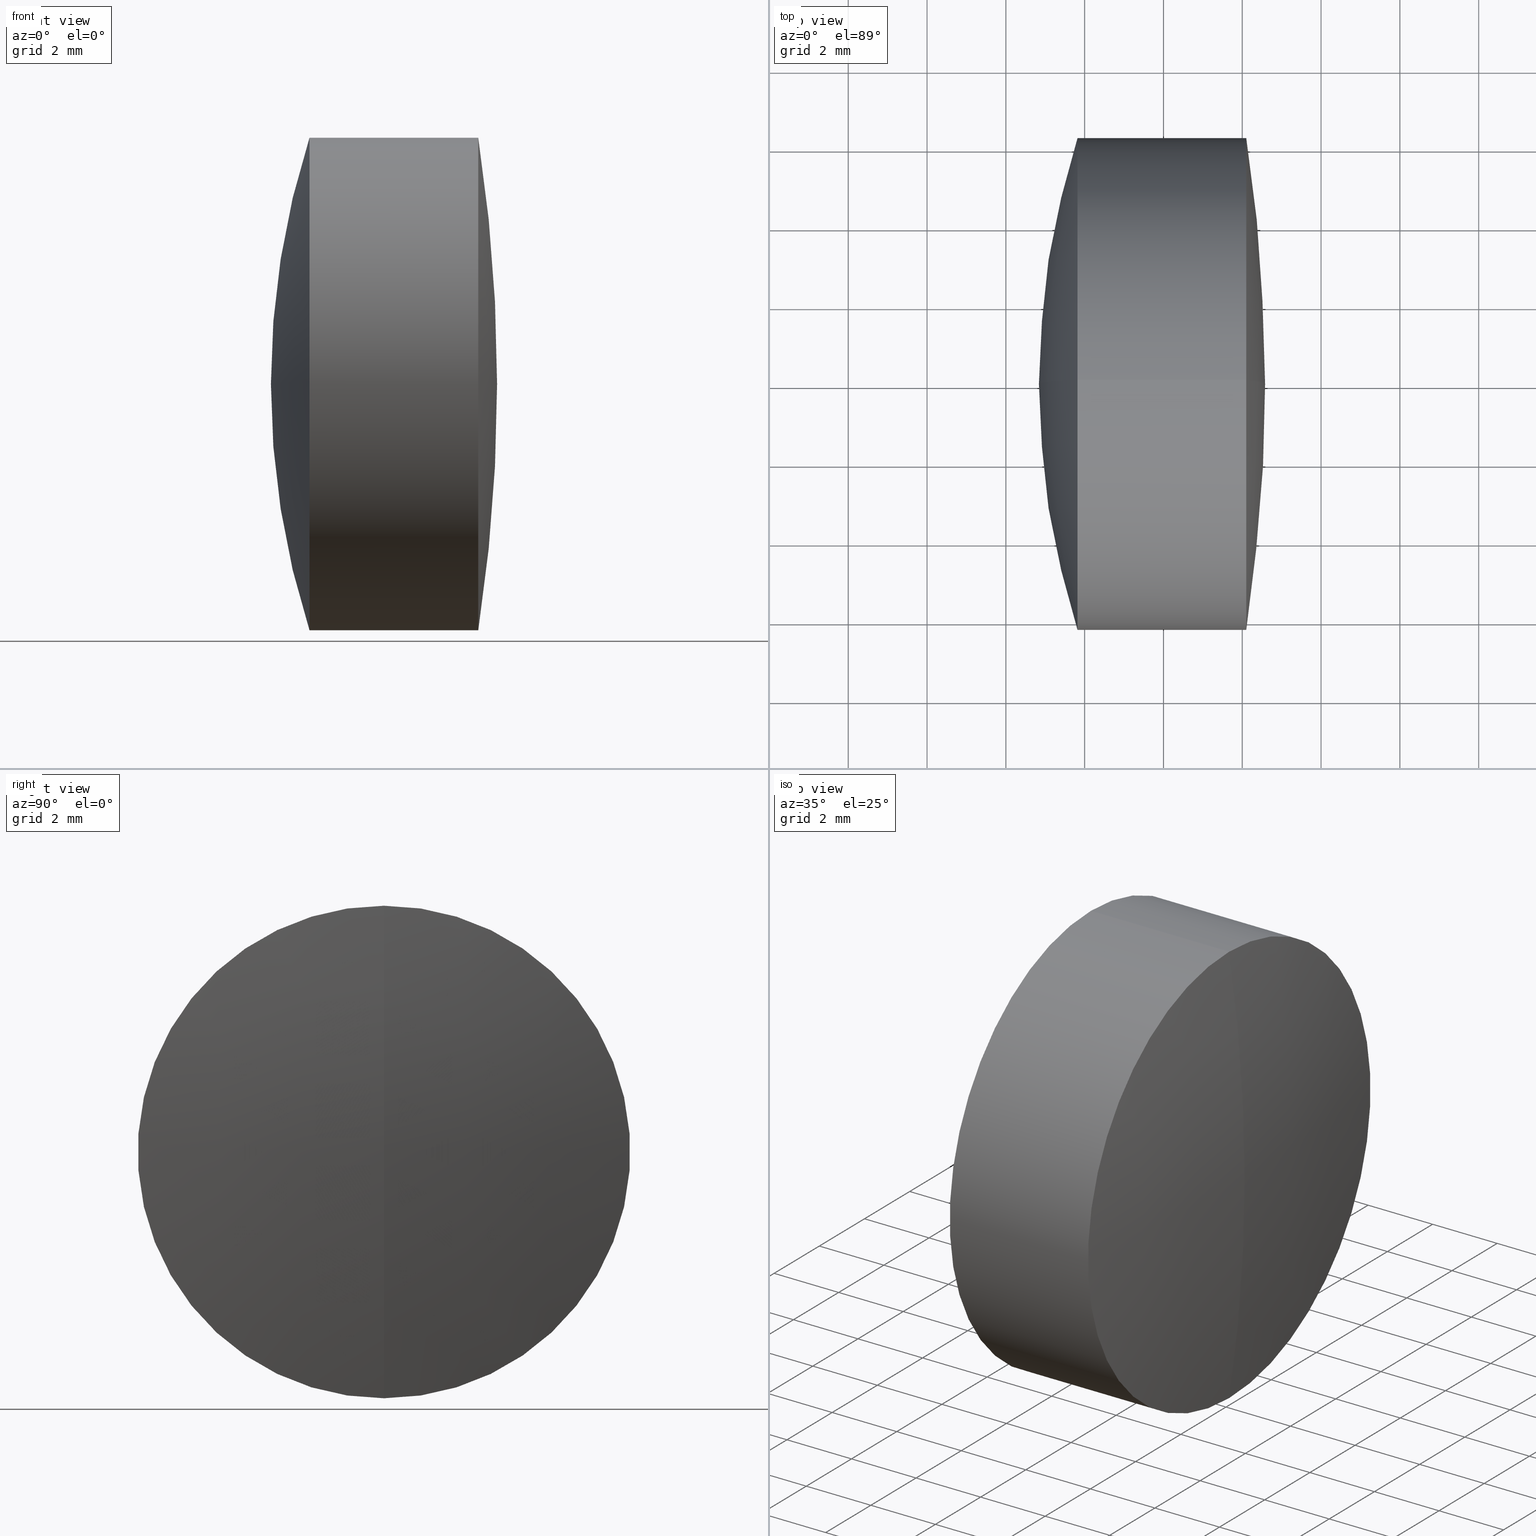
[diagram: canonical four-view strip — front | top / right | iso, engineering-drawing reading convention]
A machine part, canonical four-view strip (front | top / right | iso — engineering-drawing reading convention). The complete STEP part file that produces these views, byte-faithful:
ISO-10303-21;
HEADER;
FILE_DESCRIPTION (( 'STEP AP214' ),
    '1' );
FILE_NAME ('145023.STEP',
    '2019-05-16T06:52:18',
    ( 'user' ),
    ( '΢���й�' ),
    'SwSTEP 2.0',
    'SolidWorks 2016',
    '' );
FILE_SCHEMA (( 'AUTOMOTIVE_DESIGN' ));
ENDSEC;

DATA;
#1 = CARTESIAN_POINT ( 'NONE',  ( -1.161079219261292000, 0.0000000000000000000, 4.320415974280943700E-016 ) ) ;
#2 = ORIENTED_EDGE ( 'NONE', *, *, #272, .F. ) ;
#3 = FILL_AREA_STYLE_COLOUR ( '', #194 ) ;
#4 = VERTEX_POINT ( 'NONE', #335 ) ;
#5 = CARTESIAN_POINT ( 'NONE',  ( 19.27892078073870900, 0.0000000000000000000, -8.195474313005006500E-016 ) ) ;
#6 = DIRECTION ( 'NONE',  ( -1.000000000000000000, -0.0000000000000000000, -0.0000000000000000000 ) ) ;
#7 = COLOUR_RGB ( '',1.000000000000000000, 1.000000000000000000, 1.000000000000000000 ) ;
#8 = ORIENTED_EDGE ( 'NONE', *, *, #193, .F. ) ;
#9 = PRODUCT_RELATED_PRODUCT_CATEGORY ( 'part', '', ( #321 ) ) ;
#10 =( NAMED_UNIT ( * ) PLANE_ANGLE_UNIT ( ) SI_UNIT ( $, .RADIAN. ) );
#11 = EDGE_CURVE ( 'NONE', #136, #128, #120, .T. ) ;
#12 = AXIS2_PLACEMENT_3D ( 'NONE', #237, #157, #56 ) ;
#13 = SPHERICAL_SURFACE ( 'NONE', #317, 14.49600000000000200 ) ;
#14 = SPHERICAL_SURFACE ( 'NONE', #90, 41.14000000000000100 ) ;
#15 = CLOSED_SHELL ( 'NONE', ( #329, #19, #282, #336, #125, #102 ) ) ;
#16 = EDGE_LOOP ( 'NONE', ( #18, #198, #164, #332 ) ) ;
#17 = CIRCLE ( 'NONE', #180, 6.249999999999999100 ) ;
#18 = ORIENTED_EDGE ( 'NONE', *, *, #272, .T. ) ;
#19 = ADVANCED_FACE ( 'NONE', ( #31 ), #60, .T. ) ;
#20 = CARTESIAN_POINT ( 'NONE',  ( 1.272351808119067900, 7.654042494670955600E-016, -6.250000000000000000 ) ) ;
#21 = FACE_OUTER_BOUND ( 'NONE', #16, .T. ) ;
#22 = DIRECTION ( 'NONE',  ( 0.0000000000000000000, 0.0000000000000000000, 1.000000000000000000 ) ) ;
#23 = DIRECTION ( 'NONE',  ( 0.0000000000000000000, -1.224646799147353200E-016, 1.000000000000000000 ) ) ;
#24 = PRODUCT_DEFINITION_SHAPE ( 'NONE', 'NONE',  #274 ) ;
#25 = CARTESIAN_POINT ( 'NONE',  ( -11.80707921926129200, 0.0000000000000000000, -8.469364311325082000E-016 ) ) ;
#26 = CARTESIAN_POINT ( 'NONE',  ( -0.1820940951612623800, 0.0000000000000000000, 6.250000000000002700 ) ) ;
#27 = CARTESIAN_POINT ( 'NONE',  ( 19.27892078073870900, 0.0000000000000000000, -8.195474313005006500E-016 ) ) ;
#28 = ORIENTED_EDGE ( 'NONE', *, *, #139, .T. ) ;
#29 = AXIS2_PLACEMENT_3D ( 'NONE', #25, #152, #23 ) ;
#30 = EDGE_CURVE ( 'NONE', #344, #227, #184, .T. ) ;
#31 = FACE_OUTER_BOUND ( 'NONE', #117, .T. ) ;
#32 = CARTESIAN_POINT ( 'NONE',  ( -0.1820940951612623800, 7.654042494670960600E-016, -6.250000000000003600 ) ) ;
#33 = DIRECTION ( 'NONE',  ( 0.0000000000000000000, 0.0000000000000000000, 1.000000000000000000 ) ) ;
#34 = AXIS2_PLACEMENT_3D ( 'NONE', #123, #192, #269 ) ;
#35 = DIRECTION ( 'NONE',  ( 0.0000000000000000000, 0.0000000000000000000, 1.000000000000000000 ) ) ;
#36 = ADVANCED_FACE ( 'NONE', ( #108 ), #331, .T. ) ;
#37 = DIRECTION ( 'NONE',  ( 0.0000000000000000000, 0.0000000000000000000, 1.000000000000000000 ) ) ;
#38 = CARTESIAN_POINT ( 'NONE',  ( -36.56107921926129500, 0.0000000000000000000, 0.0000000000000000000 ) ) ;
#39 = CIRCLE ( 'NONE', #169, 6.250000000000000900 ) ;
#40 = ORIENTED_EDGE ( 'NONE', *, *, #191, .T. ) ;
#41 = ORIENTED_EDGE ( 'NONE', *, *, #223, .F. ) ;
#42 = AXIS2_PLACEMENT_3D ( 'NONE', #290, #135, #214 ) ;
#43 = ORIENTED_EDGE ( 'NONE', *, *, #279, .F. ) ;
#44 = EDGE_CURVE ( 'NONE', #227, #338, #199, .T. ) ;
#45 = EDGE_CURVE ( 'NONE', #338, #248, #55, .T. ) ;
#46 = DIRECTION ( 'NONE',  ( -1.000000000000000000, -0.0000000000000000000, -0.0000000000000000000 ) ) ;
#47 = DIRECTION ( 'NONE',  ( 0.0000000000000000000, 0.0000000000000000000, -1.000000000000000000 ) ) ;
#48 =( NAMED_UNIT ( * ) SI_UNIT ( $, .STERADIAN. ) SOLID_ANGLE_UNIT ( ) );
#49 = CARTESIAN_POINT ( 'NONE',  ( -0.5519199926577972300, 0.0000000000000000000, 0.0000000000000000000 ) ) ;
#50 = DIRECTION ( 'NONE',  ( 0.0000000000000000000, 0.0000000000000000000, 1.000000000000000000 ) ) ;
#51 = CIRCLE ( 'NONE', #340, 6.250000000000000900 ) ;
#52 = CARTESIAN_POINT ( 'NONE',  ( -0.1820940951612632400, 0.0000000000000000000, 0.0000000000000000000 ) ) ;
#53 = SHAPE_DEFINITION_REPRESENTATION ( #24, #86 ) ;
#54 = ORIENTED_EDGE ( 'NONE', *, *, #261, .F. ) ;
#55 = CIRCLE ( 'NONE', #254, 20.44000000000000100 ) ;
#56 = DIRECTION ( 'NONE',  ( 0.0000000000000000000, -1.224646799147353200E-016, 1.000000000000000000 ) ) ;
#57 = ORIENTED_EDGE ( 'NONE', *, *, #223, .T. ) ;
#58 = DIRECTION ( 'NONE',  ( -0.0000000000000000000, 1.000000000000000000, 1.224646799147353200E-016 ) ) ;
#59 = FACE_OUTER_BOUND ( 'NONE', #175, .T. ) ;
#60 = CYLINDRICAL_SURFACE ( 'NONE', #129, 6.249999999999999100 ) ;
#61 = ORIENTED_EDGE ( 'NONE', *, *, #44, .F. ) ;
#62 = AXIS2_PLACEMENT_3D ( 'NONE', #76, #6, #35 ) ;
#63 = AXIS2_PLACEMENT_3D ( 'NONE', #143, #58, #258 ) ;
#64 = ORIENTED_EDGE ( 'NONE', *, *, #147, .T. ) ;
#65 = ORIENTED_EDGE ( 'NONE', *, *, #45, .F. ) ;
#66 = AXIS2_PLACEMENT_3D ( 'NONE', #298, #154, #312 ) ;
#67 = CARTESIAN_POINT ( 'NONE',  ( -36.56107921926129500, 0.0000000000000000000, 0.0000000000000000000 ) ) ;
#68 = ORIENTED_EDGE ( 'NONE', *, *, #200, .T. ) ;
#69 = DIRECTION ( 'NONE',  ( -1.000000000000000000, -0.0000000000000000000, -0.0000000000000000000 ) ) ;
#70 = SURFACE_SIDE_STYLE ('',( #162 ) ) ;
#71 = PRESENTATION_LAYER_ASSIGNMENT (  '', '', ( #188 ) ) ;
#72 = CARTESIAN_POINT ( 'NONE',  ( 19.27892078073870900, 0.0000000000000000000, -8.195474313005006500E-016 ) ) ;
#73 = VERTEX_POINT ( 'NONE', #204 ) ;
#74 = DIRECTION ( 'NONE',  ( 0.0000000000000000000, 0.0000000000000000000, 1.000000000000000000 ) ) ;
#75 = DIRECTION ( 'NONE',  ( 0.0000000000000000000, 0.0000000000000000000, 1.000000000000000000 ) ) ;
#76 = CARTESIAN_POINT ( 'NONE',  ( -0.5519199926577972300, 0.0000000000000000000, 0.0000000000000000000 ) ) ;
#77 = SURFACE_STYLE_FILL_AREA ( #255 ) ;
#78 = ORIENTED_EDGE ( 'NONE', *, *, #139, .F. ) ;
#79 = EDGE_LOOP ( 'NONE', ( #251, #28, #218, #299 ) ) ;
#80 = DIRECTION ( 'NONE',  ( 0.0000000000000000000, 0.0000000000000000000, 1.000000000000000000 ) ) ;
#81 = CARTESIAN_POINT ( 'NONE',  ( -0.5519199926577972300, 0.0000000000000000000, 6.250000000000000000 ) ) ;
#82 = CARTESIAN_POINT ( 'NONE',  ( -11.80707921926129200, 0.0000000000000000000, -8.469364311325082000E-016 ) ) ;
#83 = VECTOR ( 'NONE', #300, 1000.000000000000000 ) ;
#84 = DIRECTION ( 'NONE',  ( 0.0000000000000000000, -1.000000000000000000, 0.0000000000000000000 ) ) ;
#85 = AXIS2_PLACEMENT_3D ( 'NONE', #5, #291, #98 ) ;
#86 = ADVANCED_BREP_SHAPE_REPRESENTATION ( '145023', ( #278, #311, #66 ), #150 ) ;
#87 = ORIENTED_EDGE ( 'NONE', *, *, #30, .T. ) ;
#88 = FACE_OUTER_BOUND ( 'NONE', #310, .T. ) ;
#89 = ORIENTED_EDGE ( 'NONE', *, *, #44, .T. ) ;
#90 = AXIS2_PLACEMENT_3D ( 'NONE', #38, #244, #37 ) ;
#91 = FACE_OUTER_BOUND ( 'NONE', #325, .T. ) ;
#92 = DIRECTION ( 'NONE',  ( -1.000000000000000000, -0.0000000000000000000, -0.0000000000000000000 ) ) ;
#93 = ORIENTED_EDGE ( 'NONE', *, *, #326, .T. ) ;
#94 = CARTESIAN_POINT ( 'NONE',  ( 2.688920780738710500, 0.0000000000000000000, 4.068756888949350500E-017 ) ) ;
#95 = CARTESIAN_POINT ( 'NONE',  ( -9.702612178336682500, 0.0000000000000000000, 0.0000000000000000000 ) ) ;
#96 = DIRECTION ( 'NONE',  ( 0.0000000000000000000, 0.0000000000000000000, 1.000000000000000000 ) ) ;
#97 = ADVANCED_FACE ( 'NONE', ( #21 ), #107, .T. ) ;
#98 = DIRECTION ( 'NONE',  ( 0.0000000000000000000, 0.0000000000000000000, 1.000000000000000000 ) ) ;
#99 = APPLICATION_PROTOCOL_DEFINITION ( 'draft international standard', 'automotive_design', 1998, #233 ) ;
#100 = PRESENTATION_STYLE_ASSIGNMENT (( #347 ) ) ;
#101 = DIRECTION ( 'NONE',  ( 0.0000000000000000000, 1.000000000000000000, 0.0000000000000000000 ) ) ;
#102 = ADVANCED_FACE ( 'NONE', ( #250 ), #264, .T. ) ;
#103 = DIRECTION ( 'NONE',  ( -1.000000000000000000, -0.0000000000000000000, -0.0000000000000000000 ) ) ;
#104 = DIRECTION ( 'NONE',  ( 0.0000000000000000000, 0.0000000000000000000, 1.000000000000000000 ) ) ;
#105 = FACE_OUTER_BOUND ( 'NONE', #195, .T. ) ;
#106 = COLOUR_RGB ( '',1.000000000000000000, 1.000000000000000000, 1.000000000000000000 ) ;
#107 = CYLINDRICAL_SURFACE ( 'NONE', #171, 6.250000000000000000 ) ;
#108 = FACE_OUTER_BOUND ( 'NONE', #79, .T. ) ;
#109 = DIRECTION ( 'NONE',  ( 0.0000000000000000000, 0.0000000000000000000, -1.000000000000000000 ) ) ;
#110 = CARTESIAN_POINT ( 'NONE',  ( -11.80707921926129200, 0.0000000000000000000, -8.469364311325082000E-016 ) ) ;
#111 = CARTESIAN_POINT ( 'NONE',  ( -11.80707921926129200, 0.0000000000000000000, -8.469364311325082000E-016 ) ) ;
#112 = UNCERTAINTY_MEASURE_WITH_UNIT (LENGTH_MEASURE( 1.000000000000000100E-005 ), #156, 'distance_accuracy_value', 'NONE');
#113 = EDGE_CURVE ( 'NONE', #333, #128, #309, .T. ) ;
#114 = VERTEX_POINT ( 'NONE', #206 ) ;
#115 = VERTEX_POINT ( 'NONE', #159 ) ;
#116 = STYLED_ITEM ( 'NONE', ( #100 ), #278 ) ;
#117 = EDGE_LOOP ( 'NONE', ( #68, #141, #61, #288 ) ) ;
#118 = SPHERICAL_SURFACE ( 'NONE', #322, 20.44000000000000100 ) ;
#119 = ORIENTED_EDGE ( 'NONE', *, *, #200, .F. ) ;
#120 = CIRCLE ( 'NONE', #63, 14.49600000000000200 ) ;
#121 = UNCERTAINTY_MEASURE_WITH_UNIT (LENGTH_MEASURE( 1.000000000000000100E-005 ), #137, 'distance_accuracy_value', 'NONE');
#122 = DIRECTION ( 'NONE',  ( 0.0000000000000000000, -1.224646799147353000E-016, 1.000000000000000000 ) ) ;
#123 = CARTESIAN_POINT ( 'NONE',  ( -11.80707921926129200, 0.0000000000000000000, -8.469364311325082000E-016 ) ) ;
#124 = DIRECTION ( 'NONE',  ( -1.000000000000000000, -0.0000000000000000000, -0.0000000000000000000 ) ) ;
#125 = ADVANCED_FACE ( 'NONE', ( #240 ), #273, .T. ) ;
#126 = DIRECTION ( 'NONE',  ( 0.0000000000000000000, 0.0000000000000000000, 1.000000000000000000 ) ) ;
#127 = PRESENTATION_LAYER_ASSIGNMENT (  '', '', ( #319 ) ) ;
#128 = VERTEX_POINT ( 'NONE', #20 ) ;
#129 = AXIS2_PLACEMENT_3D ( 'NONE', #95, #124, #216 ) ;
#130 = AXIS2_PLACEMENT_3D ( 'NONE', #230, #92, #287 ) ;
#131 = ORIENTED_EDGE ( 'NONE', *, *, #261, .T. ) ;
#132 = CIRCLE ( 'NONE', #130, 6.249999999999999100 ) ;
#133 = CARTESIAN_POINT ( 'NONE',  ( 19.27892078073870900, 0.0000000000000000000, -8.195474313005006500E-016 ) ) ;
#134 =( GEOMETRIC_REPRESENTATION_CONTEXT ( 3 ) GLOBAL_UNCERTAINTY_ASSIGNED_CONTEXT ( ( #112 ) ) GLOBAL_UNIT_ASSIGNED_CONTEXT ( ( #156, #10, #302 ) ) REPRESENTATION_CONTEXT ( 'NONE', 'WORKASPACE' ) );
#135 = DIRECTION ( 'NONE',  ( 0.0000000000000000000, -1.000000000000000000, 0.0000000000000000000 ) ) ;
#136 = VERTEX_POINT ( 'NONE', #94 ) ;
#137 =( LENGTH_UNIT ( ) NAMED_UNIT ( * ) SI_UNIT ( .MILLI., .METRE. ) );
#138 = CIRCLE ( 'NONE', #166, 14.49600000000000200 ) ;
#139 = EDGE_CURVE ( 'NONE', #333, #314, #39, .T. ) ;
#140 = ORIENTED_EDGE ( 'NONE', *, *, #170, .T. ) ;
#141 = ORIENTED_EDGE ( 'NONE', *, *, #279, .T. ) ;
#142 = FACE_OUTER_BOUND ( 'NONE', #228, .T. ) ;
#143 = CARTESIAN_POINT ( 'NONE',  ( -11.80707921926129200, 0.0000000000000000000, -8.469364311325082000E-016 ) ) ;
#144 = DIRECTION ( 'NONE',  ( -1.000000000000000000, -0.0000000000000000000, -0.0000000000000000000 ) ) ;
#145 = AXIS2_PLACEMENT_3D ( 'NONE', #271, #242, #75 ) ;
#146 = CIRCLE ( 'NONE', #29, 14.49600000000000200 ) ;
#147 = EDGE_CURVE ( 'NONE', #136, #115, #283, .T. ) ;
#148 = ORIENTED_EDGE ( 'NONE', *, *, #45, .T. ) ;
#149 = CARTESIAN_POINT ( 'NONE',  ( 1.272351808119067900, 0.0000000000000000000, 0.0000000000000000000 ) ) ;
#150 =( GEOMETRIC_REPRESENTATION_CONTEXT ( 3 ) GLOBAL_UNCERTAINTY_ASSIGNED_CONTEXT ( ( #121 ) ) GLOBAL_UNIT_ASSIGNED_CONTEXT ( ( #137, #270, #48 ) ) REPRESENTATION_CONTEXT ( 'NONE', 'WORKASPACE' ) );
#151 = CARTESIAN_POINT ( 'NONE',  ( 1.272351808119067900, 0.0000000000000000000, 6.249999999999999100 ) ) ;
#152 = DIRECTION ( 'NONE',  ( -0.0000000000000000000, 1.000000000000000000, 1.224646799147353200E-016 ) ) ;
#153 =( LENGTH_UNIT ( ) NAMED_UNIT ( * ) SI_UNIT ( .MILLI., .METRE. ) );
#154 = DIRECTION ( 'NONE',  ( 0.0000000000000000000, 0.0000000000000000000, 1.000000000000000000 ) ) ;
#155 = CARTESIAN_POINT ( 'NONE',  ( 4.101398570465201800, 0.0000000000000000000, 0.0000000000000000000 ) ) ;
#156 =( LENGTH_UNIT ( ) NAMED_UNIT ( * ) SI_UNIT ( .MILLI., .METRE. ) );
#157 = DIRECTION ( 'NONE',  ( -0.0000000000000000000, 1.000000000000000000, 1.224646799147353200E-016 ) ) ;
#158 = FACE_OUTER_BOUND ( 'NONE', #293, .T. ) ;
#159 = CARTESIAN_POINT ( 'NONE',  ( 1.272351808119067900, 0.0000000000000000000, 6.249999999999999100 ) ) ;
#160 = SURFACE_STYLE_USAGE ( .BOTH. , #210 ) ;
#161 = FILL_AREA_STYLE ('',( #346 ) ) ;
#162 = SURFACE_STYLE_FILL_AREA ( #231 ) ;
#163 = PRESENTATION_STYLE_ASSIGNMENT (( #179 ) ) ;
#164 = ORIENTED_EDGE ( 'NONE', *, *, #170, .F. ) ;
#165 = MECHANICAL_DESIGN_GEOMETRIC_PRESENTATION_REPRESENTATION (  '', ( #116 ), #226 ) ;
#166 = AXIS2_PLACEMENT_3D ( 'NONE', #82, #301, #303 ) ;
#167 = SPHERICAL_SURFACE ( 'NONE', #85, 20.44000000000000100 ) ;
#168 = SPHERICAL_SURFACE ( 'NONE', #334, 41.14000000000000100 ) ;
#169 = AXIS2_PLACEMENT_3D ( 'NONE', #178, #181, #126 ) ;
#170 = EDGE_CURVE ( 'NONE', #115, #128, #185, .T. ) ;
#171 = AXIS2_PLACEMENT_3D ( 'NONE', #49, #187, #80 ) ;
#172 = ADVANCED_FACE ( 'NONE', ( #158 ), #168, .T. ) ;
#173 = LINE ( 'NONE', #81, #342 ) ;
#174 = ORIENTED_EDGE ( 'NONE', *, *, #203, .T. ) ;
#175 = EDGE_LOOP ( 'NONE', ( #65, #196, #174 ) ) ;
#176 = ORIENTED_EDGE ( 'NONE', *, *, #337, .T. ) ;
#177 =( NAMED_UNIT ( * ) PLANE_ANGLE_UNIT ( ) SI_UNIT ( $, .RADIAN. ) );
#178 = CARTESIAN_POINT ( 'NONE',  ( 4.101398570465201800, 0.0000000000000000000, 0.0000000000000000000 ) ) ;
#179 = SURFACE_STYLE_USAGE ( .BOTH. , #70 ) ;
#180 = AXIS2_PLACEMENT_3D ( 'NONE', #315, #316, #22 ) ;
#181 = DIRECTION ( 'NONE',  ( -1.000000000000000000, -0.0000000000000000000, -0.0000000000000000000 ) ) ;
#182 = DIRECTION ( 'NONE',  ( 0.0000000000000000000, 1.000000000000000000, 0.0000000000000000000 ) ) ;
#183 = EDGE_LOOP ( 'NONE', ( #343, #176, #8 ) ) ;
#184 = LINE ( 'NONE', #245, #197 ) ;
#185 = CIRCLE ( 'NONE', #320, 6.249999999999999100 ) ;
#186 =( NAMED_UNIT ( * ) SI_UNIT ( $, .STERADIAN. ) SOLID_ANGLE_UNIT ( ) );
#187 = DIRECTION ( 'NONE',  ( -1.000000000000000000, -0.0000000000000000000, -0.0000000000000000000 ) ) ;
#188 = STYLED_ITEM ( 'NONE', ( #277 ), #86 ) ;
#189 = ORIENTED_EDGE ( 'NONE', *, *, #193, .T. ) ;
#190 = DIRECTION ( 'NONE',  ( 0.0000000000000000000, 0.0000000000000000000, 1.000000000000000000 ) ) ;
#191 = EDGE_CURVE ( 'NONE', #4, #114, #146, .T. ) ;
#192 = DIRECTION ( 'NONE',  ( 0.0000000000000000000, 1.000000000000000000, 0.0000000000000000000 ) ) ;
#193 = EDGE_CURVE ( 'NONE', #114, #344, #132, .T. ) ;
#194 = COLOUR_RGB ( '',1.000000000000000000, 1.000000000000000000, 1.000000000000000000 ) ;
#195 = EDGE_LOOP ( 'NONE', ( #339, #280, #93 ) ) ;
#196 = ORIENTED_EDGE ( 'NONE', *, *, #324, .T. ) ;
#197 = VECTOR ( 'NONE', #253, 1000.000000000000000 ) ;
#198 = ORIENTED_EDGE ( 'NONE', *, *, #113, .T. ) ;
#199 = CIRCLE ( 'NONE', #239, 6.249999999999999100 ) ;
#200 = EDGE_CURVE ( 'NONE', #344, #114, #247, .T. ) ;
#201 = LINE ( 'NONE', #209, #83 ) ;
#202 = ADVANCED_FACE ( 'NONE', ( #142 ), #14, .T. ) ;
#203 = EDGE_CURVE ( 'NONE', #227, #248, #217, .T. ) ;
#204 = CARTESIAN_POINT ( 'NONE',  ( 4.578920780738710200, 0.0000000000000000000, 2.519098465846105500E-015 ) ) ;
#205 = PRODUCT_DEFINITION_CONTEXT ( 'detailed design', #233, 'design' ) ;
#206 = CARTESIAN_POINT ( 'NONE',  ( 1.272351808119067900, 7.654042494670956600E-016, -6.249999999999999100 ) ) ;
#207 = ORIENTED_EDGE ( 'NONE', *, *, #324, .F. ) ;
#208 = DIRECTION ( 'NONE',  ( -0.0000000000000000000, 1.000000000000000000, 1.224646799147353200E-016 ) ) ;
#209 = CARTESIAN_POINT ( 'NONE',  ( -9.702612178336682500, 7.654042494670956600E-016, -6.249999999999999100 ) ) ;
#210 = SURFACE_SIDE_STYLE ('',( #77 ) ) ;
#211 = CIRCLE ( 'NONE', #12, 41.14000000000000100 ) ;
#212 = CARTESIAN_POINT ( 'NONE',  ( -0.1820940951612632400, 0.0000000000000000000, 0.0000000000000000000 ) ) ;
#213 = ORIENTED_EDGE ( 'NONE', *, *, #337, .F. ) ;
#214 = DIRECTION ( 'NONE',  ( 0.0000000000000000000, 0.0000000000000000000, -1.000000000000000000 ) ) ;
#215 = DIRECTION ( 'NONE',  ( 0.0000000000000000000, 0.0000000000000000000, 1.000000000000000000 ) ) ;
#216 = DIRECTION ( 'NONE',  ( 0.0000000000000000000, 0.0000000000000000000, 1.000000000000000000 ) ) ;
#217 = CIRCLE ( 'NONE', #221, 20.44000000000000100 ) ;
#218 = ORIENTED_EDGE ( 'NONE', *, *, #249, .T. ) ;
#219 = APPLICATION_CONTEXT ( 'automotive_design' ) ;
#220 = DIRECTION ( 'NONE',  ( -1.000000000000000000, -0.0000000000000000000, -0.0000000000000000000 ) ) ;
#221 = AXIS2_PLACEMENT_3D ( 'NONE', #72, #84, #47 ) ;
#222 = UNCERTAINTY_MEASURE_WITH_UNIT (LENGTH_MEASURE( 1.000000000000000100E-005 ), #294, 'distance_accuracy_value', 'NONE');
#223 = EDGE_CURVE ( 'NONE', #73, #314, #286, .T. ) ;
#224 = VECTOR ( 'NONE', #292, 1000.000000000000000 ) ;
#225 = AXIS2_PLACEMENT_3D ( 'NONE', #111, #101, #50 ) ;
#226 =( GEOMETRIC_REPRESENTATION_CONTEXT ( 3 ) GLOBAL_UNCERTAINTY_ASSIGNED_CONTEXT ( ( #222 ) ) GLOBAL_UNIT_ASSIGNED_CONTEXT ( ( #294, #177, #304 ) ) REPRESENTATION_CONTEXT ( 'NONE', 'WORKASPACE' ) );
#227 = VERTEX_POINT ( 'NONE', #26 ) ;
#228 = EDGE_LOOP ( 'NONE', ( #41, #131, #2 ) ) ;
#229 = DIRECTION ( 'NONE',  ( 0.0000000000000000000, 0.0000000000000000000, 1.000000000000000000 ) ) ;
#230 = CARTESIAN_POINT ( 'NONE',  ( 1.272351808119067900, 0.0000000000000000000, 0.0000000000000000000 ) ) ;
#231 = FILL_AREA_STYLE ('',( #262 ) ) ;
#232 = PRODUCT_DEFINITION_FORMATION_WITH_SPECIFIED_SOURCE ( '�κ�', '', #321, .NOT_KNOWN. ) ;
#233 = APPLICATION_CONTEXT ( 'automotive_design' ) ;
#234 = EDGE_LOOP ( 'NONE', ( #89, #148, #265 ) ) ;
#235 = ADVANCED_FACE ( 'NONE', ( #105 ), #276, .F. ) ;
#236 = DIRECTION ( 'NONE',  ( -1.000000000000000000, -0.0000000000000000000, -0.0000000000000000000 ) ) ;
#237 = CARTESIAN_POINT ( 'NONE',  ( -36.56107921926129500, 0.0000000000000000000, 0.0000000000000000000 ) ) ;
#238 = DIRECTION ( 'NONE',  ( 0.0000000000000000000, 0.0000000000000000000, 1.000000000000000000 ) ) ;
#239 = AXIS2_PLACEMENT_3D ( 'NONE', #212, #46, #104 ) ;
#240 = FACE_OUTER_BOUND ( 'NONE', #252, .T. ) ;
#241 = CARTESIAN_POINT ( 'NONE',  ( -36.56107921926129500, 0.0000000000000000000, 0.0000000000000000000 ) ) ;
#242 = DIRECTION ( 'NONE',  ( -1.000000000000000000, -0.0000000000000000000, -0.0000000000000000000 ) ) ;
#243 = ADVANCED_FACE ( 'NONE', ( #91 ), #13, .F. ) ;
#244 = DIRECTION ( 'NONE',  ( 0.0000000000000000000, 1.000000000000000000, 0.0000000000000000000 ) ) ;
#245 = CARTESIAN_POINT ( 'NONE',  ( -9.702612178336682500, 0.0000000000000000000, 6.249999999999999100 ) ) ;
#246 = DIRECTION ( 'NONE',  ( 0.0000000000000000000, 1.000000000000000000, 0.0000000000000000000 ) ) ;
#247 = CIRCLE ( 'NONE', #145, 6.249999999999999100 ) ;
#248 = VERTEX_POINT ( 'NONE', #1 ) ;
#249 = EDGE_CURVE ( 'NONE', #314, #115, #173, .T. ) ;
#250 = FACE_OUTER_BOUND ( 'NONE', #183, .T. ) ;
#251 = ORIENTED_EDGE ( 'NONE', *, *, #113, .F. ) ;
#252 = EDGE_LOOP ( 'NONE', ( #43, #189, #87, #207 ) ) ;
#253 = DIRECTION ( 'NONE',  ( -1.000000000000000000, -0.0000000000000000000, -0.0000000000000000000 ) ) ;
#254 = AXIS2_PLACEMENT_3D ( 'NONE', #27, #208, #122 ) ;
#255 = FILL_AREA_STYLE ('',( #3 ) ) ;
#256 = UNCERTAINTY_MEASURE_WITH_UNIT (LENGTH_MEASURE( 1.000000000000000100E-005 ), #153, 'distance_accuracy_value', 'NONE');
#257 = AXIS2_PLACEMENT_3D ( 'NONE', #241, #341, #109 ) ;
#258 = DIRECTION ( 'NONE',  ( 0.0000000000000000000, -1.224646799147353200E-016, 1.000000000000000000 ) ) ;
#259 = CARTESIAN_POINT ( 'NONE',  ( 4.101398570465201800, 7.654042494670959600E-016, -6.250000000000001800 ) ) ;
#260 = ORIENTED_EDGE ( 'NONE', *, *, #11, .F. ) ;
#261 = EDGE_CURVE ( 'NONE', #73, #333, #211, .T. ) ;
#262 = FILL_AREA_STYLE_COLOUR ( '', #7 ) ;
#263 = MECHANICAL_DESIGN_GEOMETRIC_PRESENTATION_REPRESENTATION (  '', ( #319 ), #285 ) ;
#264 = SPHERICAL_SURFACE ( 'NONE', #34, 14.49600000000000200 ) ;
#265 = ORIENTED_EDGE ( 'NONE', *, *, #203, .F. ) ;
#266 = SURFACE_SIDE_STYLE ('',( #297 ) ) ;
#267 = PRESENTATION_LAYER_ASSIGNMENT (  '', '', ( #116 ) ) ;
#268 = CARTESIAN_POINT ( 'NONE',  ( -11.80707921926129200, 0.0000000000000000000, -8.469364311325082000E-016 ) ) ;
#269 = DIRECTION ( 'NONE',  ( 0.0000000000000000000, 0.0000000000000000000, 1.000000000000000000 ) ) ;
#270 =( NAMED_UNIT ( * ) PLANE_ANGLE_UNIT ( ) SI_UNIT ( $, .RADIAN. ) );
#271 = CARTESIAN_POINT ( 'NONE',  ( 1.272351808119067900, 0.0000000000000000000, 0.0000000000000000000 ) ) ;
#272 = EDGE_CURVE ( 'NONE', #314, #333, #51, .T. ) ;
#273 = CYLINDRICAL_SURFACE ( 'NONE', #308, 6.249999999999999100 ) ;
#274 = PRODUCT_DEFINITION ( 'δ֪', '', #232, #205 ) ;
#275 = PRODUCT_CONTEXT ( 'NONE', #219, 'mechanical' ) ;
#276 = SPHERICAL_SURFACE ( 'NONE', #225, 14.49600000000000200 ) ;
#277 = PRESENTATION_STYLE_ASSIGNMENT (( #160 ) ) ;
#278 = MANIFOLD_SOLID_BREP ( '��ת1', #15 ) ;
#279 = EDGE_CURVE ( 'NONE', #114, #338, #201, .T. ) ;
#280 = ORIENTED_EDGE ( 'NONE', *, *, #11, .T. ) ;
#281 = AXIS2_PLACEMENT_3D ( 'NONE', #52, #144, #345 ) ;
#282 = ADVANCED_FACE ( 'NONE', ( #327 ), #167, .T. ) ;
#283 = CIRCLE ( 'NONE', #42, 14.49600000000000200 ) ;
#284 = AXIS2_PLACEMENT_3D ( 'NONE', #268, #182, #238 ) ;
#285 =( GEOMETRIC_REPRESENTATION_CONTEXT ( 3 ) GLOBAL_UNCERTAINTY_ASSIGNED_CONTEXT ( ( #256 ) ) GLOBAL_UNIT_ASSIGNED_CONTEXT ( ( #153, #330, #186 ) ) REPRESENTATION_CONTEXT ( 'NONE', 'WORKASPACE' ) );
#286 = CIRCLE ( 'NONE', #257, 41.14000000000000100 ) ;
#287 = DIRECTION ( 'NONE',  ( 0.0000000000000000000, 0.0000000000000000000, 1.000000000000000000 ) ) ;
#288 = ORIENTED_EDGE ( 'NONE', *, *, #30, .F. ) ;
#289 = CLOSED_SHELL ( 'NONE', ( #202, #97, #235, #243, #36, #172 ) ) ;
#290 = CARTESIAN_POINT ( 'NONE',  ( -11.80707921926129200, 0.0000000000000000000, -8.469364311325082000E-016 ) ) ;
#291 = DIRECTION ( 'NONE',  ( 0.0000000000000000000, 1.000000000000000000, 0.0000000000000000000 ) ) ;
#292 = DIRECTION ( 'NONE',  ( -1.000000000000000000, -0.0000000000000000000, -0.0000000000000000000 ) ) ;
#293 = EDGE_LOOP ( 'NONE', ( #54, #57, #78 ) ) ;
#294 =( LENGTH_UNIT ( ) NAMED_UNIT ( * ) SI_UNIT ( .MILLI., .METRE. ) );
#295 = CARTESIAN_POINT ( 'NONE',  ( -9.702612178336682500, 0.0000000000000000000, 0.0000000000000000000 ) ) ;
#296 = CARTESIAN_POINT ( 'NONE',  ( 4.101398570465201800, 0.0000000000000000000, 6.250000000000000900 ) ) ;
#297 = SURFACE_STYLE_FILL_AREA ( #161 ) ;
#298 = CARTESIAN_POINT ( 'NONE',  ( 0.0000000000000000000, 0.0000000000000000000, 0.0000000000000000000 ) ) ;
#299 = ORIENTED_EDGE ( 'NONE', *, *, #326, .F. ) ;
#300 = DIRECTION ( 'NONE',  ( -1.000000000000000000, -0.0000000000000000000, -0.0000000000000000000 ) ) ;
#301 = DIRECTION ( 'NONE',  ( 0.0000000000000000000, -1.000000000000000000, 0.0000000000000000000 ) ) ;
#302 =( NAMED_UNIT ( * ) SI_UNIT ( $, .STERADIAN. ) SOLID_ANGLE_UNIT ( ) );
#303 = DIRECTION ( 'NONE',  ( 0.0000000000000000000, 0.0000000000000000000, -1.000000000000000000 ) ) ;
#304 =( NAMED_UNIT ( * ) SI_UNIT ( $, .STERADIAN. ) SOLID_ANGLE_UNIT ( ) );
#305 = CIRCLE ( 'NONE', #281, 6.249999999999999100 ) ;
#306 = MECHANICAL_DESIGN_GEOMETRIC_PRESENTATION_REPRESENTATION (  '', ( #188 ), #134 ) ;
#307 = APPLICATION_PROTOCOL_DEFINITION ( 'draft international standard', 'automotive_design', 1998, #219 ) ;
#308 = AXIS2_PLACEMENT_3D ( 'NONE', #295, #69, #74 ) ;
#309 = LINE ( 'NONE', #318, #224 ) ;
#310 = EDGE_LOOP ( 'NONE', ( #213, #40, #119 ) ) ;
#311 = MANIFOLD_SOLID_BREP ( '��ת3', #289 ) ;
#312 = DIRECTION ( 'NONE',  ( 1.000000000000000000, 0.0000000000000000000, 0.0000000000000000000 ) ) ;
#313 = SPHERICAL_SURFACE ( 'NONE', #284, 14.49600000000000200 ) ;
#314 = VERTEX_POINT ( 'NONE', #296 ) ;
#315 = CARTESIAN_POINT ( 'NONE',  ( 1.272351808119067900, 0.0000000000000000000, 0.0000000000000000000 ) ) ;
#316 = DIRECTION ( 'NONE',  ( -1.000000000000000000, -0.0000000000000000000, -0.0000000000000000000 ) ) ;
#317 = AXIS2_PLACEMENT_3D ( 'NONE', #110, #323, #190 ) ;
#318 = CARTESIAN_POINT ( 'NONE',  ( -0.5519199926577972300, 7.654042494670957600E-016, -6.250000000000000000 ) ) ;
#319 = STYLED_ITEM ( 'NONE', ( #163 ), #311 ) ;
#320 = AXIS2_PLACEMENT_3D ( 'NONE', #149, #103, #215 ) ;
#321 = PRODUCT ( '145023', '145023', '', ( #275 ) ) ;
#322 = AXIS2_PLACEMENT_3D ( 'NONE', #133, #246, #229 ) ;
#323 = DIRECTION ( 'NONE',  ( 0.0000000000000000000, 1.000000000000000000, 0.0000000000000000000 ) ) ;
#324 = EDGE_CURVE ( 'NONE', #338, #227, #305, .T. ) ;
#325 = EDGE_LOOP ( 'NONE', ( #260, #64, #140 ) ) ;
#326 = EDGE_CURVE ( 'NONE', #128, #115, #17, .T. ) ;
#327 = FACE_OUTER_BOUND ( 'NONE', #234, .T. ) ;
#328 = DIRECTION ( 'NONE',  ( 0.0000000000000000000, 1.000000000000000000, 0.0000000000000000000 ) ) ;
#329 = ADVANCED_FACE ( 'NONE', ( #88 ), #313, .T. ) ;
#330 =( NAMED_UNIT ( * ) PLANE_ANGLE_UNIT ( ) SI_UNIT ( $, .RADIAN. ) );
#331 = CYLINDRICAL_SURFACE ( 'NONE', #62, 6.250000000000000000 ) ;
#332 = ORIENTED_EDGE ( 'NONE', *, *, #249, .F. ) ;
#333 = VERTEX_POINT ( 'NONE', #259 ) ;
#334 = AXIS2_PLACEMENT_3D ( 'NONE', #67, #328, #96 ) ;
#335 = CARTESIAN_POINT ( 'NONE',  ( 2.688920780738710500, 0.0000000000000000000, 4.068756888949350500E-017 ) ) ;
#336 = ADVANCED_FACE ( 'NONE', ( #59 ), #118, .T. ) ;
#337 = EDGE_CURVE ( 'NONE', #4, #344, #138, .T. ) ;
#338 = VERTEX_POINT ( 'NONE', #32 ) ;
#339 = ORIENTED_EDGE ( 'NONE', *, *, #147, .F. ) ;
#340 = AXIS2_PLACEMENT_3D ( 'NONE', #155, #236, #33 ) ;
#341 = DIRECTION ( 'NONE',  ( 0.0000000000000000000, -1.000000000000000000, 0.0000000000000000000 ) ) ;
#342 = VECTOR ( 'NONE', #220, 1000.000000000000000 ) ;
#343 = ORIENTED_EDGE ( 'NONE', *, *, #191, .F. ) ;
#344 = VERTEX_POINT ( 'NONE', #151 ) ;
#345 = DIRECTION ( 'NONE',  ( 0.0000000000000000000, 0.0000000000000000000, 1.000000000000000000 ) ) ;
#346 = FILL_AREA_STYLE_COLOUR ( '', #106 ) ;
#347 = SURFACE_STYLE_USAGE ( .BOTH. , #266 ) ;
ENDSEC;
END-ISO-10303-21;
